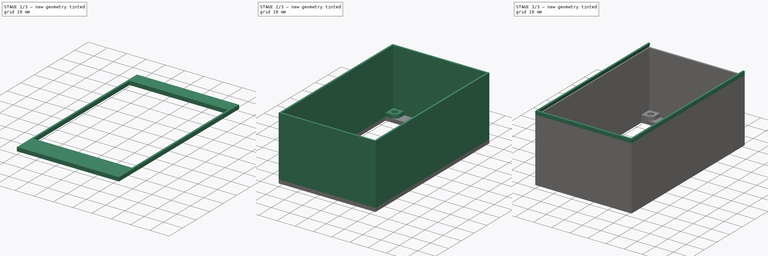
[diagram: build sequence overview — one tinted view per stage of 3, left to right]
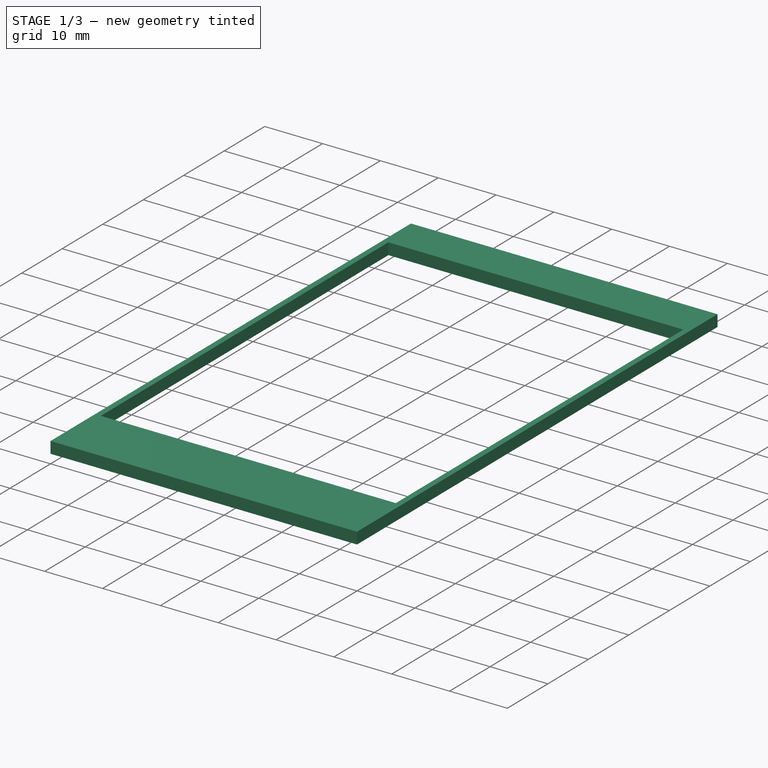
[diagram: stage 1 of 3 — iso view after this stage's code; geometry added in this stage tinted green]
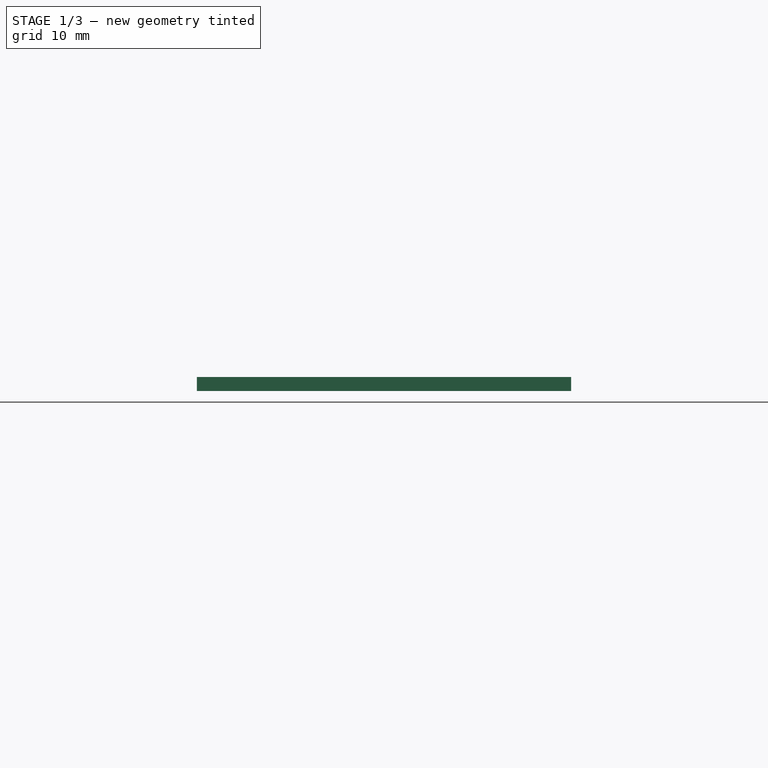
[diagram: stage 1 of 3 — front view after this stage's code; geometry added in this stage tinted green]
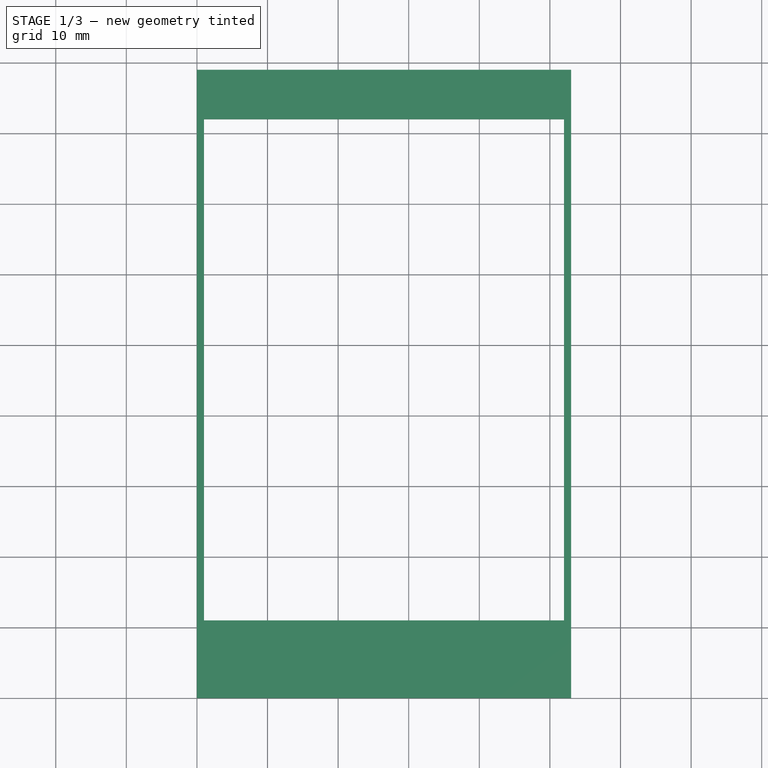
[diagram: stage 1 of 3 — top view after this stage's code; geometry added in this stage tinted green]
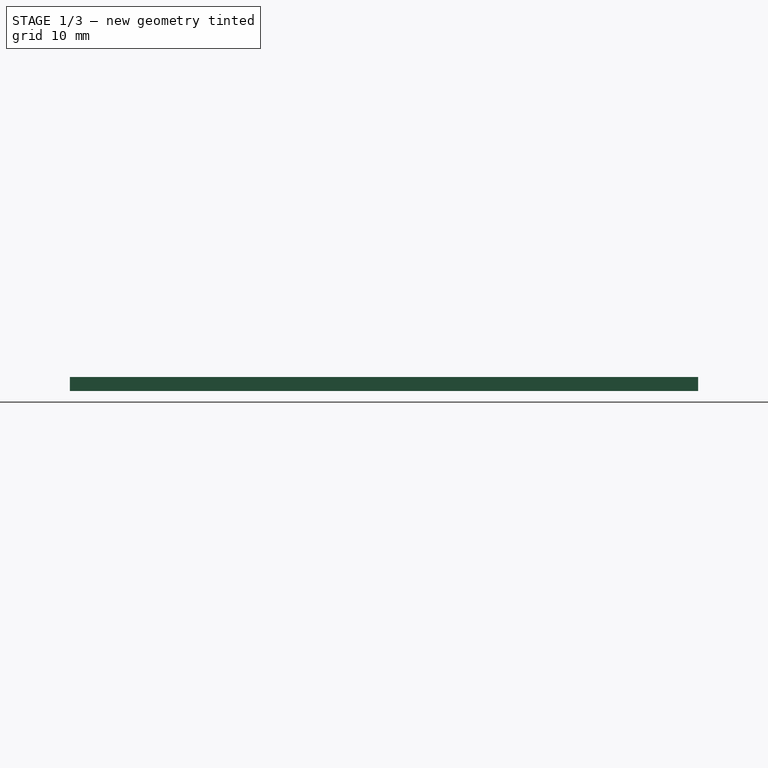
[diagram: stage 1 of 3 — right view after this stage's code; geometry added in this stage tinted green]
FCSTD DOCUMENT  (FreeCAD 0.19R)
Label: case
License: All rights reserved
LicenseURL: http://en.wikipedia.org/wiki/All_rights_reserved
objects: Sketcher::SketchObject×6, PartDesign::Pad×4, PartDesign::Pocket×2, PartDesign::Body×1
note: 19 computed .brp shape members not serialized (recipe doc carries the construction recipe); baked Part::Feature solids carry a one-line shape summary decoded from their .brp

FEATURE [Sketcher::SketchObject] Sketch
  FullyConstrained = true
  MapMode = 5
  Support = -> [XY_Plane]
  sketch-geometry (4):
    g0: LineSegment StartX=0 StartY=0 StartZ=0 EndX=53 EndY=0 EndZ=0
    g1: LineSegment StartX=53 StartY=0 StartZ=0 EndX=53 EndY=89 EndZ=0
    g2: LineSegment StartX=53 StartY=89 StartZ=0 EndX=0 EndY=89 EndZ=0
    g3: LineSegment StartX=0 StartY=89 StartZ=0 EndX=0 EndY=0 EndZ=0
  constraints (11):
    c: Coincident(g0,g1)
    c: Coincident(g1,g2)
    c: Coincident(g2,g3)
    c: Coincident(g3,g0)
    c: Horizontal(g0)
    c: Horizontal(g2)
    c: Vertical(g1)
    c: Vertical(g3)
    c: Coincident(g0,g-1)
    c: DistanceX(g2,g2) = 53
    c: DistanceY(g1,g1) = 89
FEATURE [PartDesign::Pad] Pad
  Direction = (1,1,1)
  Length = 2
  Length2 = 100
  Profile = -> Sketch
  Type = 0
FEATURE [Sketcher::SketchObject] Sketch001
  FullyConstrained = true
  MapMode = 5
  Placement = pos=(0,0,2) rot=(0,0,1;0rad)
  Support = -> [Pad]
  sketch-geometry (4):
    g0: LineSegment StartX=1 StartY=11 StartZ=0 EndX=52 EndY=11 EndZ=0
    g1: LineSegment StartX=52 StartY=11 StartZ=0 EndX=52 EndY=82 EndZ=0
    g2: LineSegment StartX=52 StartY=82 StartZ=0 EndX=1 EndY=82 EndZ=0
    g3: LineSegment StartX=1 StartY=82 StartZ=0 EndX=1 EndY=11 EndZ=0
  constraints (12):
    c: Coincident(g0,g1)
    c: Coincident(g1,g2)
    c: Coincident(g2,g3)
    c: Coincident(g3,g0)
    c: Horizontal(g0)
    c: Horizontal(g2)
    c: Vertical(g1)
    c: Vertical(g3)
    c: DistanceX(g2,g2) = 51
    c: DistanceX(g-1,g0) = 1
    c: DistanceY(g1,g1) = 71
    c: DistanceY(g-1,g0) = 11
FEATURE [PartDesign::Pocket] Pocket
  BaseFeature = -> Pad
  Length = 5
  Length2 = 100
  Profile = -> Sketch001
  Type = 2
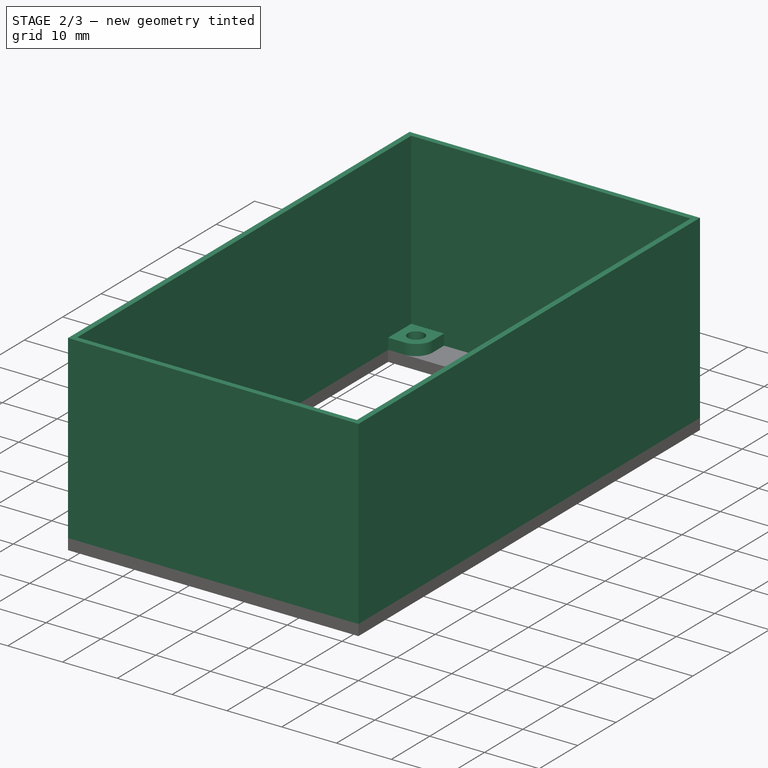
[diagram: stage 2 of 3 — iso view after this stage's code; geometry added in this stage tinted green]
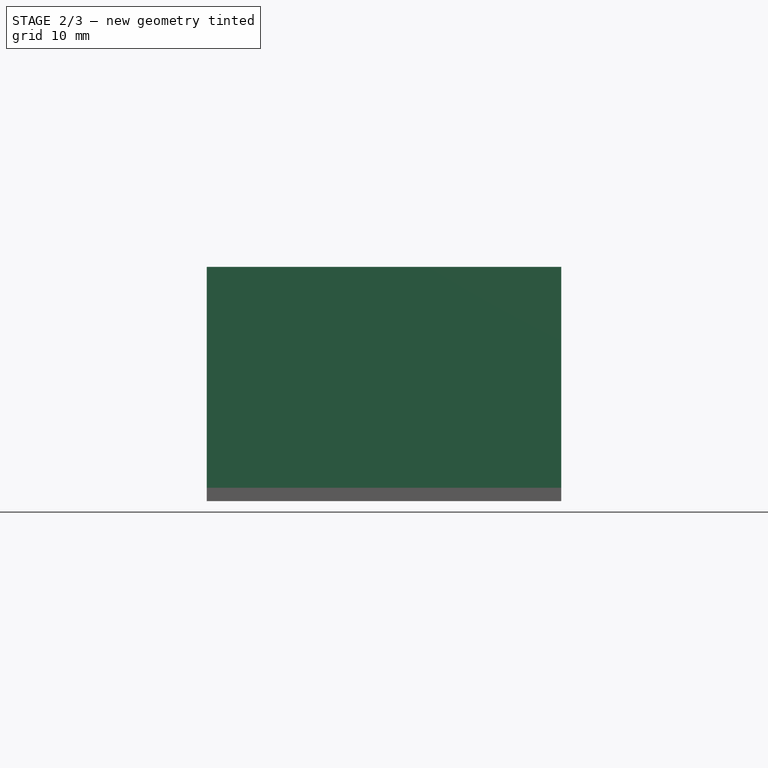
[diagram: stage 2 of 3 — front view after this stage's code; geometry added in this stage tinted green]
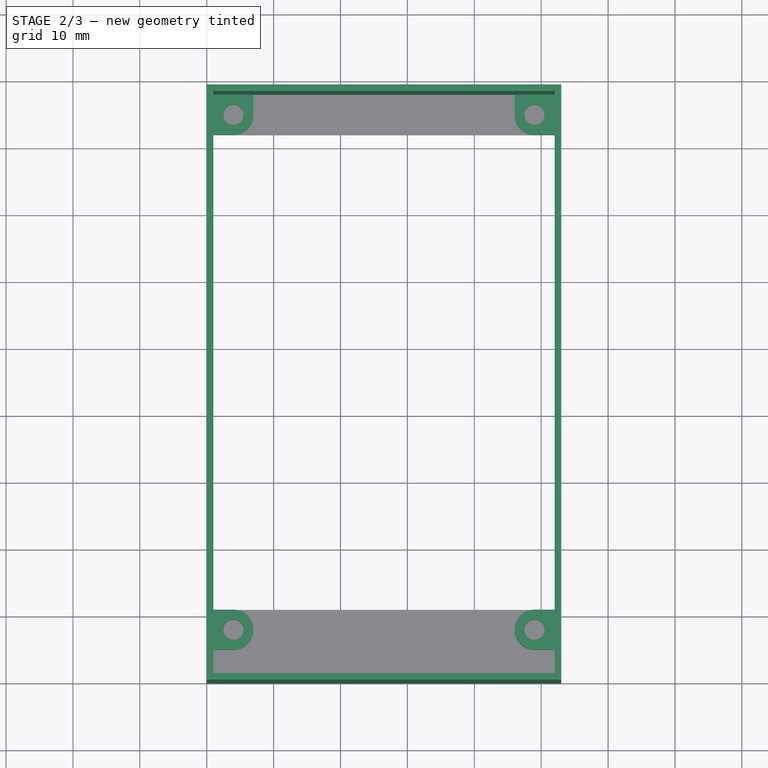
[diagram: stage 2 of 3 — top view after this stage's code; geometry added in this stage tinted green]
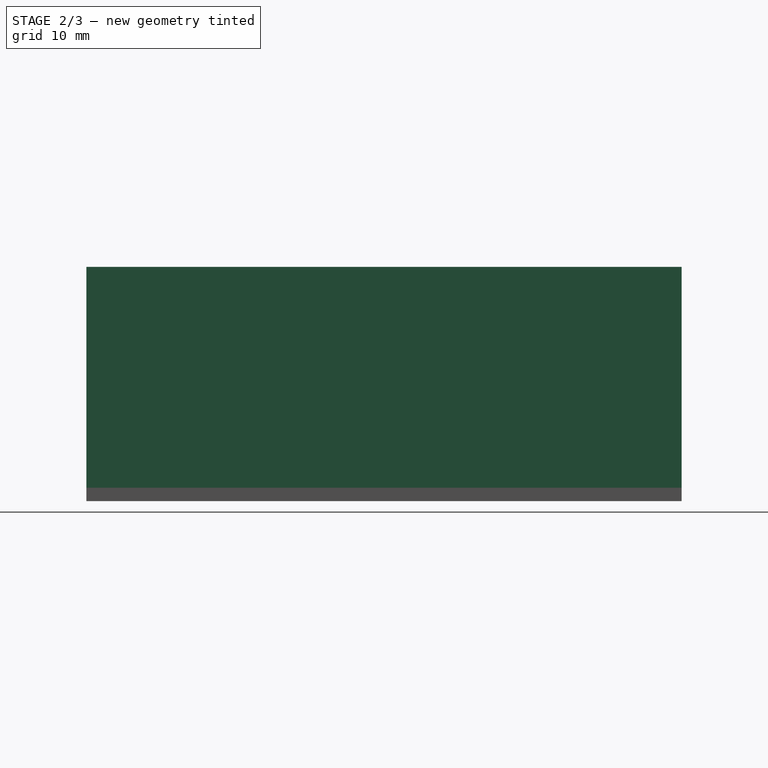
[diagram: stage 2 of 3 — right view after this stage's code; geometry added in this stage tinted green]
FEATURE [Sketcher::SketchObject] Sketch002
  FullyConstrained = true
  MapMode = 5
  Placement = pos=(0,0,2) rot=(0,0,1;0rad)
  Support = -> [Pocket]
  sketch-geometry (8):
    g0: LineSegment StartX=0 StartY=0 StartZ=0 EndX=53 EndY=0 EndZ=0
    g1: LineSegment StartX=53 StartY=0 StartZ=0 EndX=53 EndY=89 EndZ=0
    g2: LineSegment StartX=53 StartY=89 StartZ=0 EndX=0 EndY=89 EndZ=0
    g3: LineSegment StartX=0 StartY=89 StartZ=0 EndX=0 EndY=0 EndZ=0
    g4: LineSegment StartX=1 StartY=1 StartZ=0 EndX=52 EndY=1 EndZ=0
    g5: LineSegment StartX=52 StartY=1 StartZ=0 EndX=52 EndY=88 EndZ=0
    g6: LineSegment StartX=52 StartY=88 StartZ=0 EndX=1 EndY=88 EndZ=0
    g7: LineSegment StartX=1 StartY=88 StartZ=0 EndX=1 EndY=1 EndZ=0
  constraints (23):
    c: Coincident(g0,g1)
    c: Coincident(g1,g2)
    c: Coincident(g2,g3)
    c: Coincident(g3,g0)
    c: Horizontal(g0)
    c: Horizontal(g2)
    c: Vertical(g1)
    c: Vertical(g3)
    c: Coincident(g0,g-1)
    c: DistanceX(g0,g0) = 53
    c: DistanceY(g1,g1) = 89
    c: Coincident(g4,g5)
    c: Coincident(g5,g6)
    c: Coincident(g6,g7)
    c: Coincident(g7,g4)
    c: Horizontal(g4)
    c: Horizontal(g6)
    c: Vertical(g5)
    c: Vertical(g7)
    c: DistanceX(g0,g4) = 1
    c: DistanceY(g0,g4) = 1
    c: DistanceX(g4,g4) = 51
    c: DistanceY(g5,g5) = 87
FEATURE [PartDesign::Pad] Pad001
  BaseFeature = -> Pocket
  Direction = (1,1,1)
  Length = 33
  Length2 = 100
  Profile = -> Sketch002
  Type = 0
FEATURE [Sketcher::SketchObject] Sketch003
  FullyConstrained = true
  MapMode = 5
  Placement = pos=(0,0,2) rot=(0,0,1;0rad)
  Support = -> [Pad001]
  sketch-geometry (22):
    g0: Circle CenterX=4 CenterY=8 CenterZ=0 NormalX=0 NormalY=0 NormalZ=1 AngleXU=0 Radius=1.5
    g1: Circle CenterX=49 CenterY=8 CenterZ=0 NormalX=0 NormalY=0 NormalZ=1 AngleXU=0 Radius=1.5
    g2: Circle CenterX=4 CenterY=85 CenterZ=0 NormalX=0 NormalY=0 NormalZ=1 AngleXU=0 Radius=1.5
    g3: Circle CenterX=49 CenterY=85 CenterZ=0 NormalX=0 NormalY=0 NormalZ=1 AngleXU=0 Radius=1.5
    g4: ArcOfCircle CenterX=4 CenterY=85 CenterZ=0 NormalX=0 NormalY=0 NormalZ=1 AngleXU=0 Radius=3 StartAngle=4.71239 EndAngle=6.28319
    g5: LineSegment StartX=4 StartY=82 StartZ=0 EndX=1 EndY=82 EndZ=0
    g6: LineSegment StartX=1 StartY=82 StartZ=0 EndX=1 EndY=88 EndZ=0
    g7: LineSegment StartX=1 StartY=88 StartZ=0 EndX=7 EndY=88 EndZ=0
    g8: LineSegment StartX=7 StartY=88 StartZ=0 EndX=7 EndY=85 EndZ=0
    g9: ArcOfCircle CenterX=49 CenterY=85 CenterZ=0 NormalX=0 NormalY=0 NormalZ=1 AngleXU=0 Radius=3 StartAngle=3.14159 EndAngle=4.71239
    g10: LineSegment StartX=46 StartY=85 StartZ=0 EndX=46 EndY=88 EndZ=0
    g11: LineSegment StartX=46 StartY=88 StartZ=0 EndX=52 EndY=88 EndZ=0
    g12: LineSegment StartX=52 StartY=88 StartZ=0 EndX=52 EndY=82 EndZ=0
    g13: LineSegment StartX=52 StartY=82 StartZ=0 EndX=49 EndY=82 EndZ=0
    g14: ArcOfCircle CenterX=49 CenterY=8 CenterZ=0 NormalX=0 NormalY=0 NormalZ=1 AngleXU=0 Radius=3 StartAngle=1.5708 EndAngle=4.71239
    g15: LineSegment StartX=49 StartY=11 StartZ=0 EndX=52 EndY=11 EndZ=0
    g16: LineSegment StartX=52 StartY=11 StartZ=0 EndX=52 EndY=5 EndZ=0
    g17: LineSegment StartX=52 StartY=5 StartZ=0 EndX=49 EndY=5 EndZ=0
    g18: ArcOfCircle CenterX=4 CenterY=8 CenterZ=0 NormalX=0 NormalY=0 NormalZ=1 AngleXU=0 Radius=3 StartAngle=4.71239 EndAngle=7.85398
    g19: LineSegment StartX=4 StartY=5 StartZ=0 EndX=1 EndY=5 EndZ=0
    g20: LineSegment StartX=1 StartY=5 StartZ=0 EndX=1 EndY=11 EndZ=0
    g21: LineSegment StartX=1 StartY=11 StartZ=0 EndX=4 EndY=11 EndZ=0
  constraints (62):
    c: Diameter(g0) = 3
    c: Equal(g0,g1)
    c: Equal(g1,g3)
    c: Equal(g3,g2)
    c: DistanceY(g-1,g0) = 8
    c: DistanceY(g1,g0) = 0
    c: DistanceX(g0,g2) = 0
    c: DistanceY(g2,g3) = 0
    c: DistanceX(g1,g3) = 0
    c: DistanceX(g-1,g0) = 4
    c: DistanceX(g0,g1) = 45
    c: DistanceY(g0,g2) = 77
    c: Coincident(g4,g2)
    c: Diameter(g4) = 6
    c: Tangent(g4,g5) = 1.5708
    c: Coincident(g5,g6)
    c: Vertical(g6)
    c: Coincident(g6,g7)
    c: Horizontal(g7)
    c: Coincident(g7,g8)
    c: Coincident(g8,g4)
    c: Vertical(g8)
    c: DistanceX(g7,g7) = 6
    c: Equal(g6,g7)
    c: DistanceY(g-1,g5) = 82
    c: DistanceY(g8,g8) = 3
    c: Coincident(g9,g3)
    c: Diameter(g9) = 6
    c: Tangent(g9,g10) = 1.5708
    c: Coincident(g10,g11)
    c: Horizontal(g11)
    c: Coincident(g11,g12)
    c: Vertical(g12)
    c: Coincident(g12,g13)
    c: Coincident(g13,g9)
    c: Horizontal(g13)
    c: DistanceY(g12,g12) = 6
    c: Equal(g12,g11)
    c: Vertical(g10)
    c: DistanceY(g10,g10) = 3
    c: Coincident(g14,g1)
    c: Tangent(g14,g15) = 1.5708
    c: Coincident(g15,g16)
    c: Vertical(g16)
    c: Coincident(g16,g17)
    c: Coincident(g17,g14)
    c: Horizontal(g17)
    c: Diameter(g14) = 6
    c: DistanceY(g16,g16) = 6
    c: DistanceX(g15,g15) = 3
    c: Equal(g17,g15)
    c: Coincident(g18,g0)
    c: Tangent(g18,g19) = 1.5708
    c: Coincident(g19,g20)
    c: Vertical(g20)
    c: Coincident(g20,g21)
    c: Coincident(g21,g18)
    c: Horizontal(g21)
    c: Diameter(g18) = 6
    c: DistanceX(g21,g21) = 3
    c: Equal(g21,g19)
    c: Horizontal(g19)
FEATURE [PartDesign::Pad] Pad002
  BaseFeature = -> Pad001
  Direction = (1,1,1)
  Length = 2
  Length2 = 100
  Profile = -> Sketch003
  Type = 0
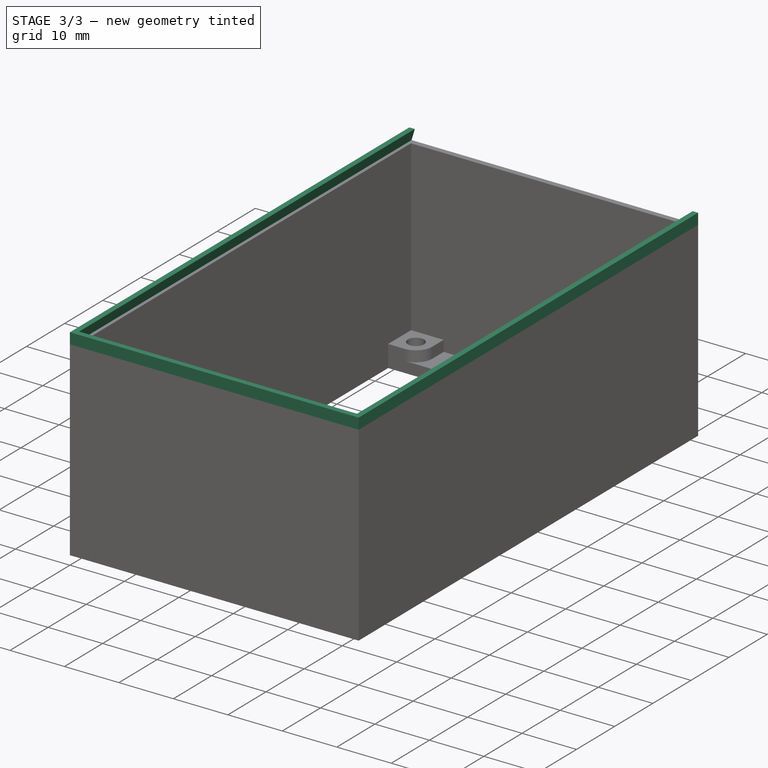
[diagram: stage 3 of 3 — iso view after this stage's code; geometry added in this stage tinted green]
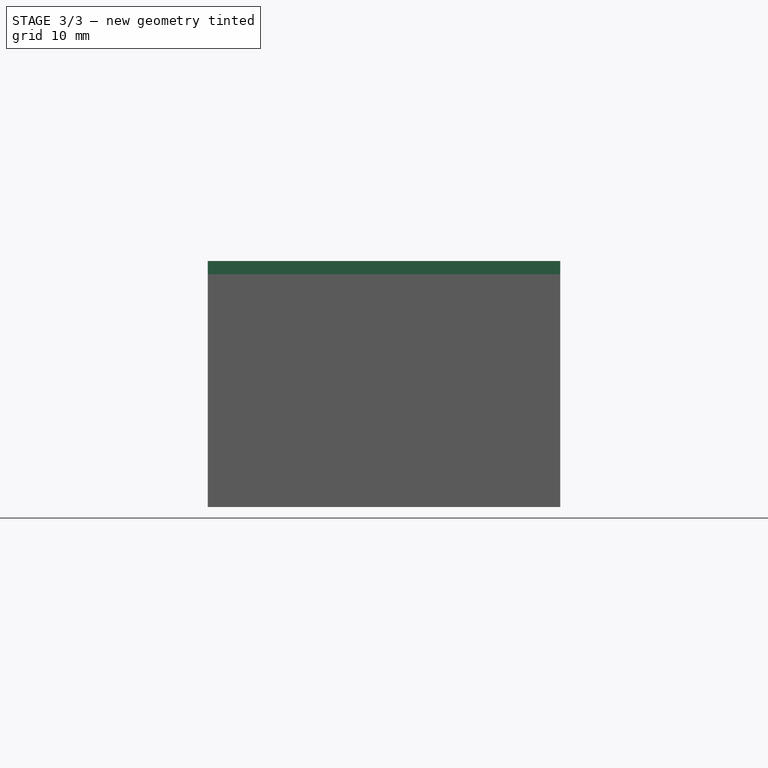
[diagram: stage 3 of 3 — front view after this stage's code; geometry added in this stage tinted green]
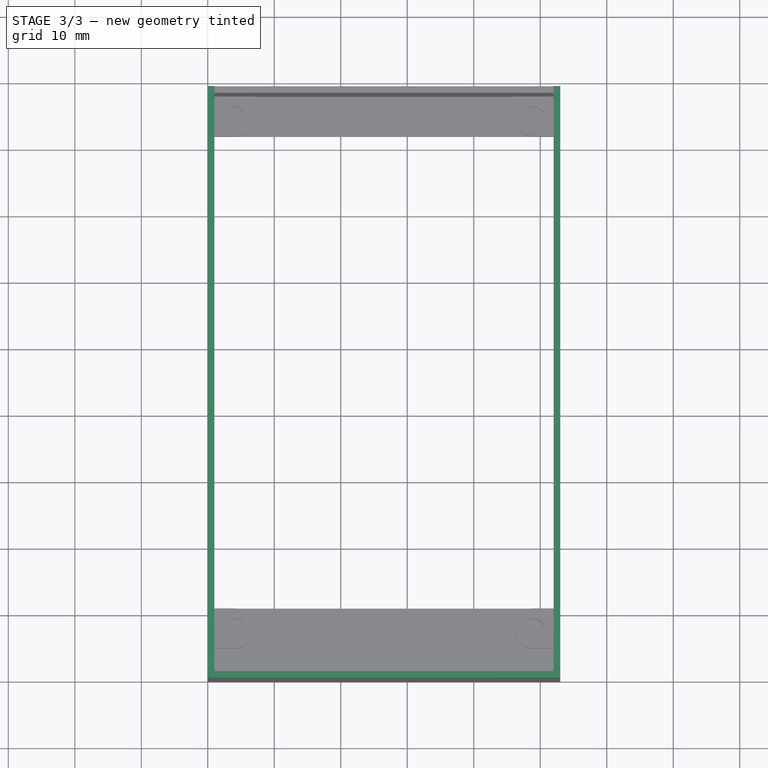
[diagram: stage 3 of 3 — top view after this stage's code; geometry added in this stage tinted green]
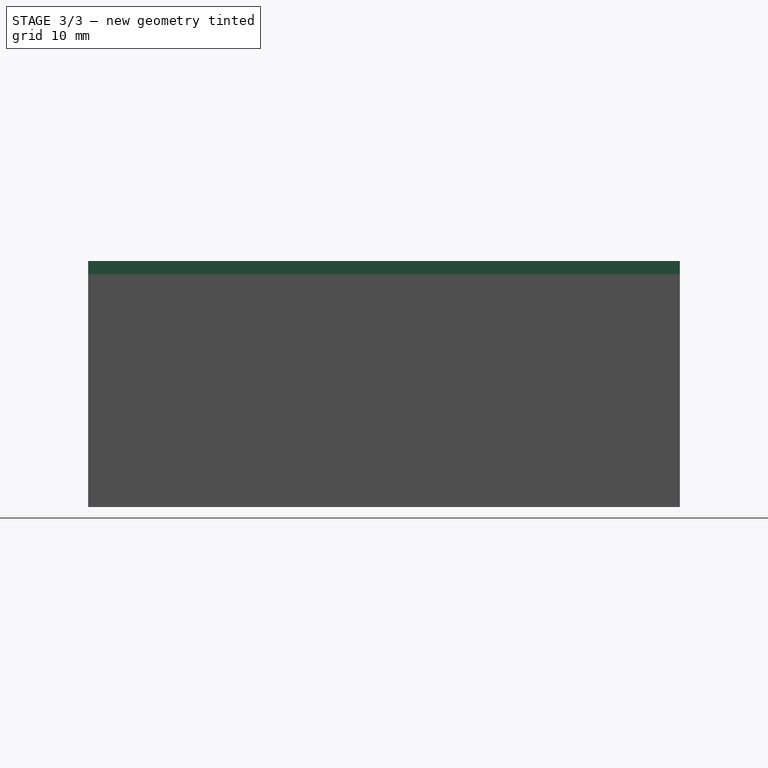
[diagram: stage 3 of 3 — right view after this stage's code; geometry added in this stage tinted green]
FEATURE [Sketcher::SketchObject] Sketch004
  FullyConstrained = true
  MapMode = 5
  Placement = pos=(0,0,35) rot=(0,0,1;0rad)
  Support = -> [Pad002]
  sketch-geometry (8):
    g0: LineSegment StartX=0 StartY=0 StartZ=0 EndX=0 EndY=89 EndZ=0
    g1: LineSegment StartX=0 StartY=89 StartZ=0 EndX=1 EndY=89 EndZ=0
    g2: LineSegment StartX=1 StartY=89 StartZ=0 EndX=1 EndY=1 EndZ=0
    g3: LineSegment StartX=1 StartY=1 StartZ=0 EndX=52 EndY=1 EndZ=0
    g4: LineSegment StartX=52 StartY=1 StartZ=0 EndX=52 EndY=89 EndZ=0
    g5: LineSegment StartX=52 StartY=89 StartZ=0 EndX=53 EndY=89 EndZ=0
    g6: LineSegment StartX=53 StartY=89 StartZ=0 EndX=53 EndY=0 EndZ=0
    g7: LineSegment StartX=53 StartY=0 StartZ=0 EndX=0 EndY=0 EndZ=0
  constraints (23):
    c: Coincident(g-1,g0)
    c: PointOnObject(g0,g-2)
    c: Coincident(g0,g1)
    c: Coincident(g1,g2)
    c: Vertical(g2)
    c: Coincident(g2,g3)
    c: Horizontal(g3)
    c: Coincident(g3,g4)
    c: Vertical(g4)
    c: Coincident(g4,g5)
    c: Coincident(g5,g6)
    c: PointOnObject(g6,g-1)
    c: Vertical(g6)
    c: Coincident(g6,g7)
    c: Coincident(g7,g0)
    c: DistanceX(g7,g7) = 53
    c: DistanceY(g0,g0) = 89
    c: DistanceY(g2,g2) = 88
    c: DistanceX(g1,g1) = 1
    c: Horizontal(g1)
    c: DistanceX(g3,g3) = 51
    c: Equal(g4,g2)
    c: Equal(g6,g0)
FEATURE [PartDesign::Pad] Pad003
  BaseFeature = -> Pad002
  Direction = (1,1,1)
  Length = 2
  Length2 = 100
  Profile = -> Sketch004
  Type = 0
FEATURE [Sketcher::SketchObject] Sketch005
  FullyConstrained = true
  MapMode = 5
  Placement = pos=(0,89,0) rot=(0,0.707107,0.707107;3.14159rad)
  Support = -> [Pad003]
  sketch-geometry (6):
    g0: LineSegment StartX=-52.6 StartY=35 StartZ=0 EndX=-52 EndY=37 EndZ=0
    g1: LineSegment StartX=-52 StartY=37 StartZ=0 EndX=-52 EndY=35 EndZ=0
    g2: LineSegment StartX=-52 StartY=35 StartZ=0 EndX=-52.6 EndY=35 EndZ=0
    g3: LineSegment StartX=-1 StartY=35 StartZ=0 EndX=-1 EndY=37 EndZ=0
    g4: LineSegment StartX=-1 StartY=37 StartZ=0 EndX=-0.4 EndY=35 EndZ=0
    g5: LineSegment StartX=-0.4 StartY=35 StartZ=0 EndX=-1 EndY=35 EndZ=0
  constraints (18):
    c: Coincident(g0,g1)
    c: Vertical(g1)
    c: Coincident(g1,g2)
    c: Coincident(g2,g0)
    c: Horizontal(g2)
    c: DistanceY(g1,g1) = 2
    c: DistanceX(g2,g2) = 0.6
    c: Vertical(g3)
    c: Coincident(g3,g4)
    c: Coincident(g4,g5)
    c: Coincident(g5,g3)
    c: Horizontal(g5)
    c: Equal(g5,g2)
    c: Equal(g1,g3)
    c: DistanceY(g-1,g3) = 35
    c: DistanceX(g3,g-1) = 1
    c: DistanceX(g1,g3) = 51
    c: DistanceY(g3,g1) = 0
FEATURE [PartDesign::Pocket] Pocket001
  BaseFeature = -> Pad003
  Length = 88
  Length2 = 100
  Profile = -> Sketch005
  Type = 0
FEATURE [PartDesign::Body] Body
  Group = -> [Sketch,Pad,Sketch001,Pocket,Sketch002,Pad001,Sketch003,Pad002,Sketch004,Pad003,Sketch005,Pocket001]
  Origin = -> Origin
  Tip = -> Pocket001
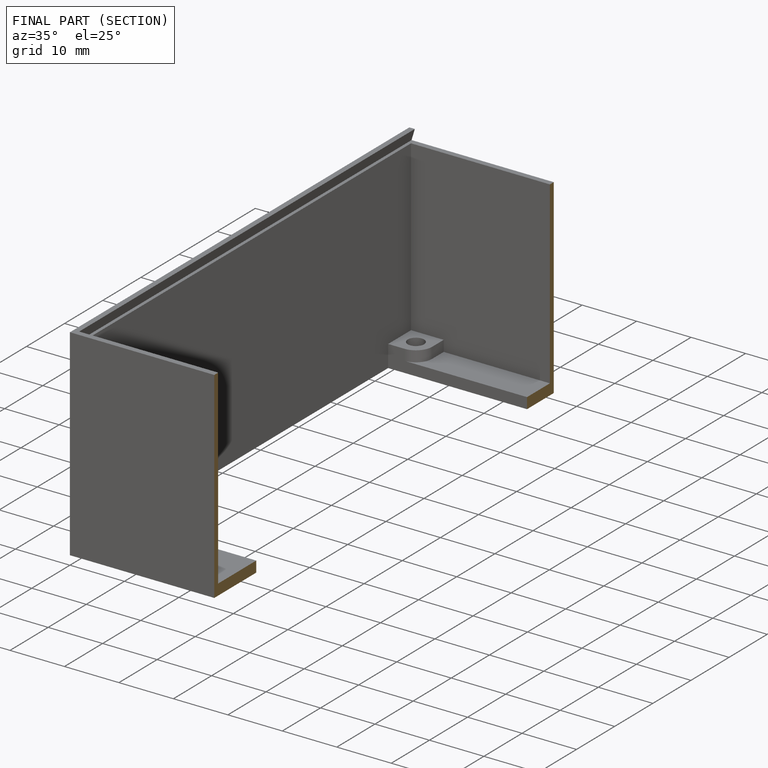
[diagram: finished part — half-section view (interior)]
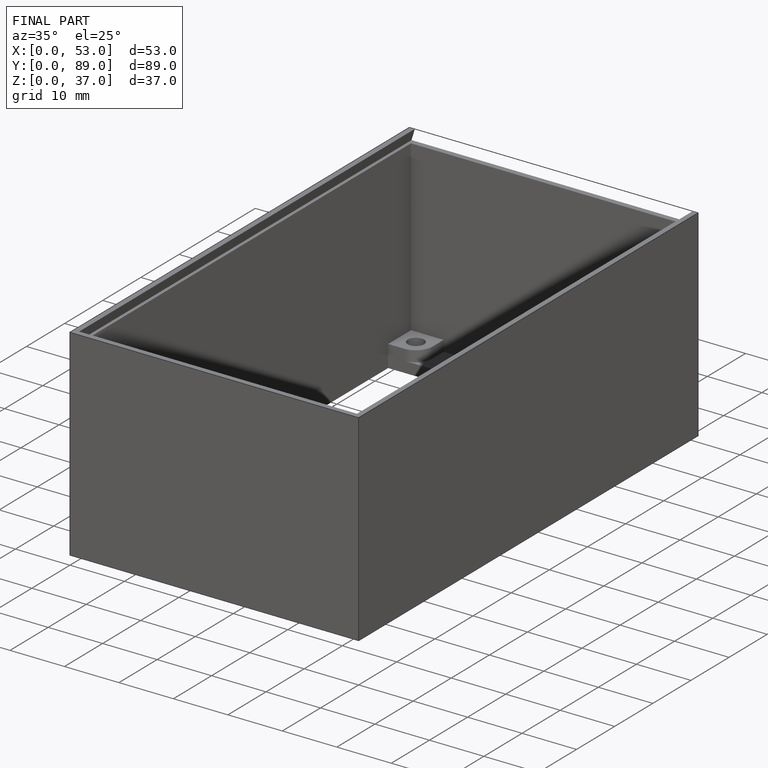
[diagram: finished part — iso view with bounding-box wireframe]
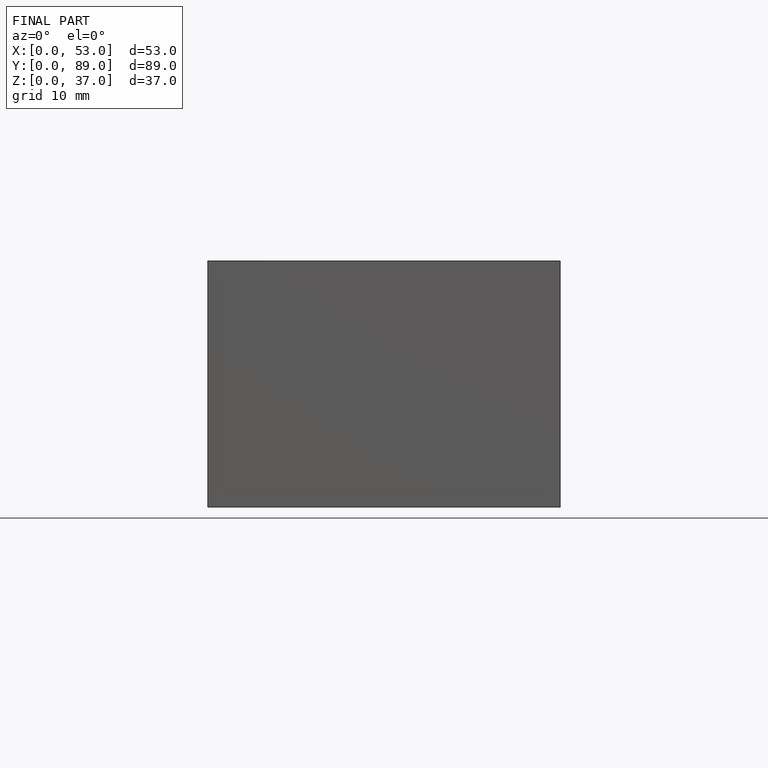
[diagram: finished part — front view with bounding-box wireframe]
